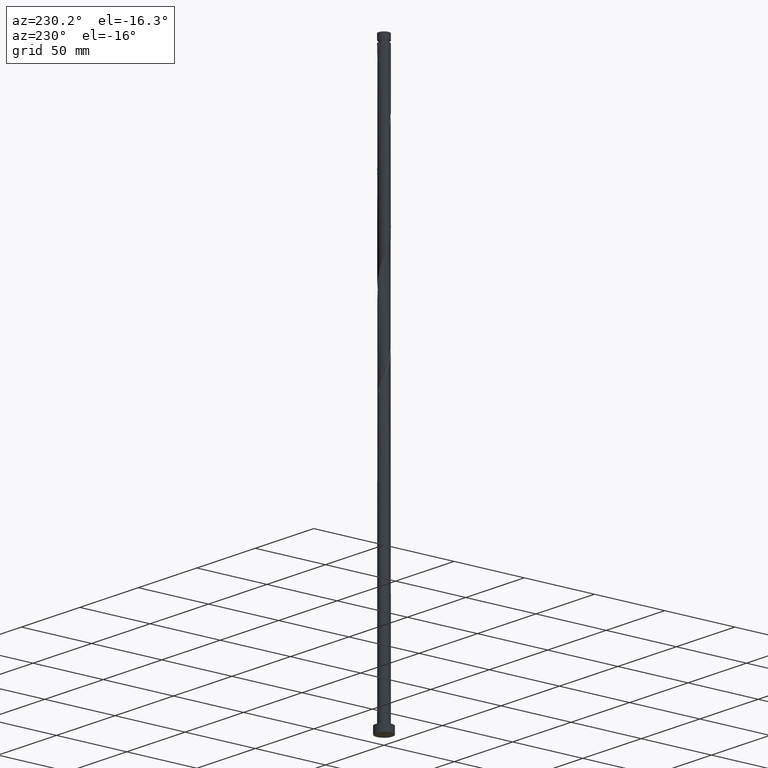
[diagram: clean part render]
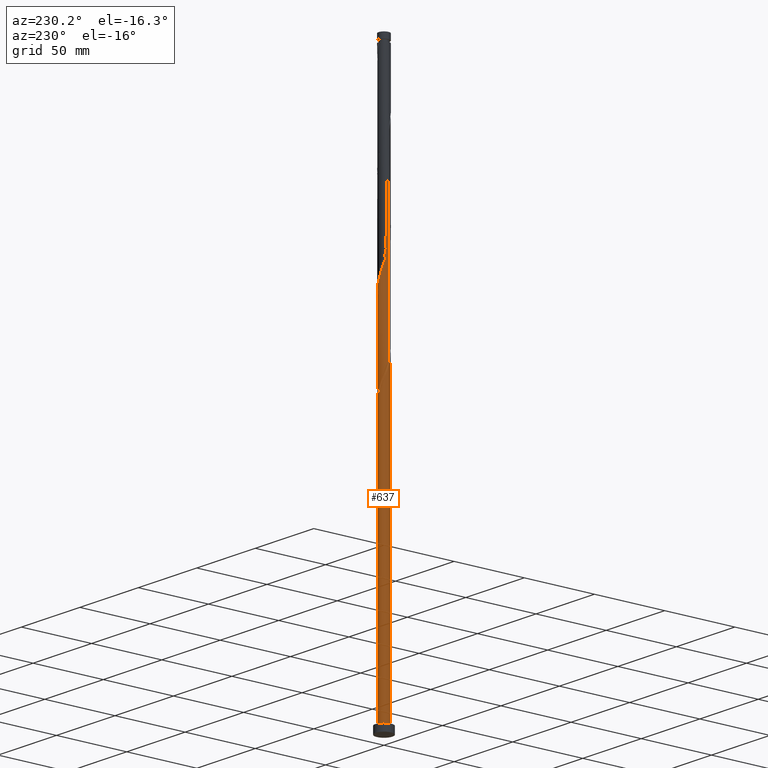
[diagram: same view with one face highlighted and labeled with its STEP entity id]
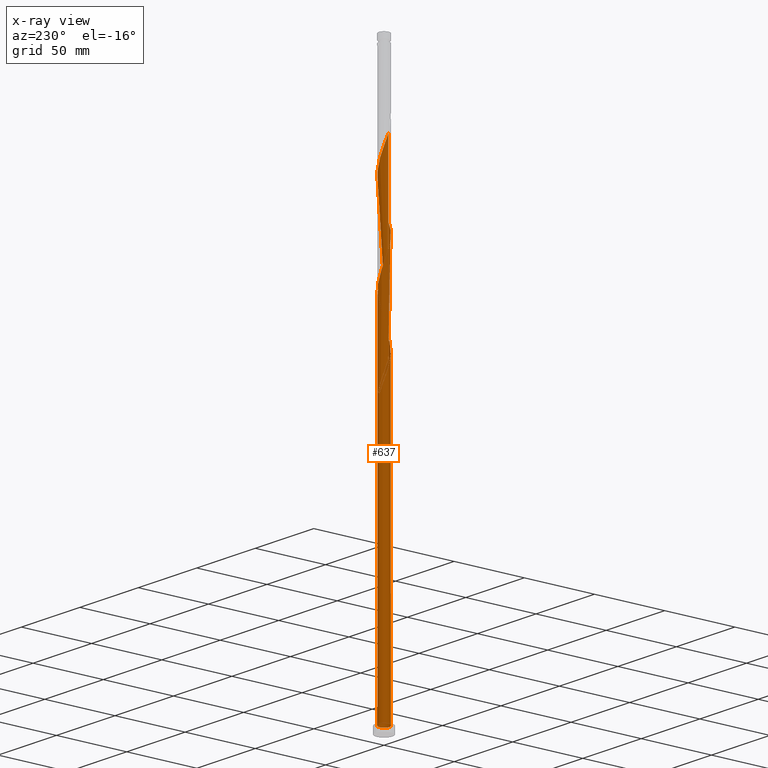
[diagram: x-ray of the same camera — body ghosted, the highlighted face saturated]
A machine part, auxiliary view. The second image highlights one B-rep face of the part: STEP entity #637.
The next image is the same camera in x-ray: the body ghosted, the highlighted face saturated — about 0% of this face is hidden behind the body in this view.
In plain terms, the highlighted cylindrical surface (bore or boss wall) has radius 3.75 mm, axis along (-0, -0, -1).
Its self-contained STEP definition (entity closure, byte-faithful):
#17 = CARTESIAN_POINT ( 'NONE',  ( -3.750000000000000888, 0.1794149973253045538, 212.5831069436316341 ) ) ;
#22 = CARTESIAN_POINT ( 'NONE',  ( -3.750000000000000000, -4.349988887413529122E-15, 213.0916554691957003 ) ) ;
#24 = ORIENTED_EDGE ( 'NONE', *, *, #1068, .F. ) ;
#26 = CARTESIAN_POINT ( 'NONE',  ( -3.695242927395921750, 0.7503510795542961409, 210.9662122256741270 ) ) ;
#34 = CARTESIAN_POINT ( 'NONE',  ( -1.914980618589563921, 3.248183533220407870, 202.0773233367853265 ) ) ;
#45 = CARTESIAN_POINT ( 'NONE',  ( -1.556389492818216480, -3.411766660638603899, 287.6328788923406705 ) ) ;
#51 = CARTESIAN_POINT ( 'NONE',  ( 0.3599825132286074147, 3.753433045257034362, 195.4106566701185841 ) ) ;
#64 = DIRECTION ( 'NONE',  ( -0.000000000000000000, -0.000000000000000000, -1.000000000000000000 ) ) ;
#74 = CARTESIAN_POINT ( 'NONE',  ( 0.8130324731184126463, 3.660802944390068259, 323.1884344478963271 ) ) ;
#79 = CARTESIAN_POINT ( 'NONE',  ( -2.497444560349062037, 2.824998708502501010, 266.5217677812296415 ) ) ;
#85 =( BOUNDED_CURVE ( )  B_SPLINE_CURVE ( 2, ( #422, #1012, #101, #681, #1021, #1608, #600, #887, #1182, #1221, #477, #1063, #1501, #775, #358 ),
 .UNSPECIFIED., .F., .T. ) 
 B_SPLINE_CURVE_WITH_KNOTS ( ( 3, 2, 2, 2, 2, 2, 2, 3 ),
 ( 0.000000000000000000, 0.008333333333333303727, 0.01666666666666671848, 0.02500000000000002220, 0.03333333333333332593, 0.04166666666666662966, 0.05000000000000004441, 0.05452860127731123940 ),
 .UNSPECIFIED. ) 
 CURVE ( )  GEOMETRIC_REPRESENTATION_ITEM ( )  RATIONAL_B_SPLINE_CURVE ( ( 0.9090909090909544688, 0.9041108139712027425, 0.9090909090909544688, 0.9041108139712027425, 0.9090909090909544688, 0.9041108139712027425, 0.9090909090909544688, 0.9041108139712027425, 0.9090909090909544688, 0.9041108139712027425, 0.9090909090909544688, 0.9041108139712027425, 0.9090909090909544688, 0.9063845652765017968, 0.9066196499552428012 ) ) 
 REPRESENTATION_ITEM ( '' )  );
#88 = CARTESIAN_POINT ( 'NONE',  ( 3.030219662713869777, -2.244017787532032404, 235.4106566701185557 ) ) ;
#99 = CARTESIAN_POINT ( 'NONE',  ( -3.750000000000000000, 0.000000000000000000, 400.0000000000000000 ) ) ;
#101 = CARTESIAN_POINT ( 'NONE',  ( -1.494008894529859743, 3.439540292403290067, 196.5217677812296984 ) ) ;
#114 = CARTESIAN_POINT ( 'NONE',  ( -2.809523069992831967, -2.483763297735532394, 216.5217677812296699 ) ) ;
#126 = CARTESIAN_POINT ( 'NONE',  ( -3.695242927395926191, -0.7503510795542960299, 277.6328788923407274 ) ) ;
#164 = CARTESIAN_POINT ( 'NONE',  ( -3.070577111982274676, 2.188470524002659623, 206.5217677812297268 ) ) ;
#191 = EDGE_LOOP ( 'NONE', ( #1455, #24, #1234, #1474, #1331, #329, #898, #750, #1315 ) ) ;
#202 = CARTESIAN_POINT ( 'NONE',  ( 3.576864584649876999, 1.126294696372800663, 312.0773233367851276 ) ) ;
#224 = CARTESIAN_POINT ( 'NONE',  ( -1.494008894529859743, 3.439540292403290067, 263.1884344478963271 ) ) ;
#229 = CARTESIAN_POINT ( 'NONE',  ( -0.7462405778299678882, 3.675000000000004263, 327.6328788923407842 ) ) ;
#233 = CARTESIAN_POINT ( 'NONE',  ( 3.770499765217955268, -0.03433009684319965338, 242.0773233367851844 ) ) ;
#238 = CARTESIAN_POINT ( 'NONE',  ( -3.230389643962377821, 1.904490154393204904, 336.5217677812297552 ) ) ;
#241 = CIRCLE ( 'NONE', #1308, 3.750000000000000000 ) ;
#242 = CARTESIAN_POINT ( 'NONE',  ( 0.7462405778299683323, -3.675000000000004263, 227.6328788923408410 ) ) ;
#250 = CARTESIAN_POINT ( 'NONE',  ( 3.695242927395926191, 0.7503510795542954748, 244.2995455590074130 ) ) ;
#254 = EDGE_CURVE ( 'NONE', #582, #459, #998, .T. ) ;
#261 = CARTESIAN_POINT ( 'NONE',  ( -0.3599825132286042506, 3.753433045257040135, 259.8551011145629559 ) ) ;
#291 = CARTESIAN_POINT ( 'NONE',  ( -0.7462405778299678882, 3.675000000000004263, 194.2995455590074698 ) ) ;
#303 = CARTESIAN_POINT ( 'NONE',  ( -3.576864584649870338, 1.126294696372802662, 209.8551011145630127 ) ) ;
#318 = CIRCLE ( 'NONE', #1384, 3.750000000000000000 ) ;
#323 = CARTESIAN_POINT ( 'NONE',  ( -0.4282665791899551988, -3.746256100723340587, 290.9662122256741554 ) ) ;
#329 = ORIENTED_EDGE ( 'NONE', *, *, #1688, .F. ) ;
#332 = CARTESIAN_POINT ( 'NONE',  ( 3.430559625210885866, -1.564962521254378958, 304.2995455590074698 ) ) ;
#337 = CARTESIAN_POINT ( 'NONE',  ( -0.03414203298067297609, 3.749844572990185476, 196.5217677812296131 ) ) ;
#342 = CARTESIAN_POINT ( 'NONE',  ( 3.770499765217955268, -0.03433009684319965338, 308.7439900034519269 ) ) ;
#351 = CARTESIAN_POINT ( 'NONE',  ( -2.548469028003383485, -2.779056071468405165, 284.2995455590074130 ) ) ;
#358 = CARTESIAN_POINT ( 'NONE',  ( -3.750000000000004441, -4.394834133675493575E-15, 208.8407689821526390 ) ) ;
#369 = CARTESIAN_POINT ( 'NONE',  ( 0.03414203298067567532, 3.749844572990191249, 325.4106566701185557 ) ) ;
#372 = CARTESIAN_POINT ( 'NONE',  ( 1.855519146628387794, -3.282513630063609078, 230.9662122256740986 ) ) ;
#377 = CARTESIAN_POINT ( 'NONE',  ( -3.555763647822798745, 1.191236702264471203, 338.7439900034519269 ) ) ;
#380 = CARTESIAN_POINT ( 'NONE',  ( 3.430559625210885866, -1.564962521254378958, 237.6328788923407558 ) ) ;
#382 = CARTESIAN_POINT ( 'NONE',  ( 0.000000000000000000, 0.000000000000000000, 5.000000000000000000 ) ) ;
#389 = EDGE_CURVE ( 'NONE', #601, #741, #318, .T. ) ;
#391 = CARTESIAN_POINT ( 'NONE',  ( -1.197798367046865708, -3.575349788056795486, 222.0773233367852413 ) ) ;
#395 = VECTOR ( 'NONE', #64, 1000.000000000000000 ) ;
#400 = CARTESIAN_POINT ( 'NONE',  ( 0.8130324731184126463, 3.660802944390068259, 256.5217677812296984 ) ) ;
#420 = DIRECTION ( 'NONE',  ( 0.000000000000000000, 0.000000000000000000, 1.000000000000000000 ) ) ;
#422 = CARTESIAN_POINT ( 'NONE',  ( -0.7462405778299678882, 3.675000000000004263, 194.2995455590074698 ) ) ;
#434 = CARTESIAN_POINT ( 'NONE',  ( -3.750000000000004441, -4.394834133675493575E-15, 208.8407689821526390 ) ) ;
#445 = CARTESIAN_POINT ( 'NONE',  ( -3.680967670434714289, 0.8175108832745635601, 273.1884344478963271 ) ) ;
#459 = VERTEX_POINT ( 'NONE', #22 ) ;
#473 = CARTESIAN_POINT ( 'NONE',  ( 2.763832111531465685, -2.534508248017266485, 300.9662122256740986 ) ) ;
#477 = CARTESIAN_POINT ( 'NONE',  ( -3.555763647822798745, 1.191236702264471203, 205.4106566701186125 ) ) ;
#481 = AXIS2_PLACEMENT_3D ( 'NONE', #1452, #420, #1321 ) ;
#483 = CARTESIAN_POINT ( 'NONE',  ( -2.231724823296476146, -3.013619802344408072, 285.4106566701185557 ) ) ;
#494 = CARTESIAN_POINT ( 'NONE',  ( 3.070577111982280893, 2.188470524002659623, 315.4106566701185557 ) ) ;
#511 = VERTEX_POINT ( 'NONE', #1152 ) ;
#516 = CARTESIAN_POINT ( 'NONE',  ( 2.763832111531465685, -2.534508248017266485, 234.2995455590074130 ) ) ;
#518 = CARTESIAN_POINT ( 'NONE',  ( -3.750000000000003997, 0.2136515154241252490, 341.5685110061013461 ) ) ;
#526 = CARTESIAN_POINT ( 'NONE',  ( 1.494008894529858189, -3.439540292403290511, 229.8551011145629843 ) ) ;
#533 = CARTESIAN_POINT ( 'NONE',  ( -3.680967670434714289, 0.8175108832745635601, 339.8551011145629559 ) ) ;
#538 = CARTESIAN_POINT ( 'NONE',  ( 2.231724823296477034, 3.013619802344407628, 252.0773233367852413 ) ) ;
#540 = LINE ( 'NONE', #978, #395 ) ;
#546 = CARTESIAN_POINT ( 'NONE',  ( 3.458486241903827363, 1.502238313191306629, 246.5217677812296415 ) ) ;
#555 = CARTESIAN_POINT ( 'NONE',  ( -3.264531676943051686, -1.845354418596985679, 214.2995455590074982 ) ) ;
#576 = CARTESIAN_POINT ( 'NONE',  ( -3.576864584649876555, -1.126294696372802218, 278.7439900034519269 ) ) ;
#582 = VERTEX_POINT ( 'NONE', #1433 ) ;
#584 = DIRECTION ( 'NONE',  ( 1.000000000000000000, 0.000000000000000000, 0.000000000000000000 ) ) ;
#590 = CYLINDRICAL_SURFACE ( 'NONE', #874, 3.750000000000000000 ) ;
#600 = CARTESIAN_POINT ( 'NONE',  ( -2.763832111531466573, 2.534508248017266041, 200.9662122256741554 ) ) ;
#601 = VERTEX_POINT ( 'NONE', #291 ) ;
#603 = CARTESIAN_POINT ( 'NONE',  ( -2.809523069992826638, 2.483763297735531062, 205.4106566701185841 ) ) ;
#613 = EDGE_CURVE ( 'NONE', #996, #511, #634, .T. ) ;
#617 = CARTESIAN_POINT ( 'NONE',  ( -0.8130324731184077613, 3.660802944390063818, 198.7439900034518985 ) ) ;
#634 = CIRCLE ( 'NONE', #481, 3.750000000000000000 ) ;
#637 = ADVANCED_FACE ( 'NONE', ( #1312 ), #590, .T. ) ;
#653 = CARTESIAN_POINT ( 'NONE',  ( -3.750000000000004441, -1.569583619169819247E-15, 342.1741023154859249 ) ) ;
#660 = CARTESIAN_POINT ( 'NONE',  ( -2.763832111531466573, 2.534508248017266041, 267.6328788923407842 ) ) ;
#666 = CARTESIAN_POINT ( 'NONE',  ( -2.176481853488724472, 3.053756169283055488, 332.0773233367850708 ) ) ;
#669 = CARTESIAN_POINT ( 'NONE',  ( 3.732871346306941618, 0.3580104913555462454, 243.1884344478963840 ) ) ;
#678 = CARTESIAN_POINT ( 'NONE',  ( 3.264531676943052574, 1.845354418596985235, 247.6328788923407842 ) ) ;
#681 = CARTESIAN_POINT ( 'NONE',  ( -1.855519146628388238, 3.282513630063609078, 197.6328788923408126 ) ) ;
#683 = CARTESIAN_POINT ( 'NONE',  ( -1.855519146628388238, 3.282513630063609078, 330.9662122256740417 ) ) ;
#694 = CARTESIAN_POINT ( 'NONE',  ( 3.555763647822799634, -1.191236702264472314, 238.7439900034519553 ) ) ;
#697 = DIRECTION ( 'NONE',  ( -1.000000000000000000, 0.000000000000000000, 0.000000000000000000 ) ) ;
#741 = VERTEX_POINT ( 'NONE', #1033 ) ;
#750 = ORIENTED_EDGE ( 'NONE', *, *, #389, .T. ) ;
#761 = CARTESIAN_POINT ( 'NONE',  ( -3.732871346306935845, 0.3580104913555497426, 212.0773233367852413 ) ) ;
#770 = CARTESIAN_POINT ( 'NONE',  ( 3.680967670434712957, -0.8175108832745658916, 306.5217677812297552 ) ) ;
#775 = CARTESIAN_POINT ( 'NONE',  ( -3.750000000000003553, 0.2136515154241331038, 208.2351776727680601 ) ) ;
#779 = CARTESIAN_POINT ( 'NONE',  ( 2.497444560349061149, -2.824998708502501454, 299.8551011145630696 ) ) ;
#787 = CARTESIAN_POINT ( 'NONE',  ( 2.231724823296477034, 3.013619802344407628, 318.7439900034519837 ) ) ;
#792 = CARTESIAN_POINT ( 'NONE',  ( 0.7462405778299694425, 3.674999999999999378, 194.2995455590074698 ) ) ;
#799 = CARTESIAN_POINT ( 'NONE',  ( -1.855519146628388238, 3.282513630063609078, 264.2995455590074698 ) ) ;
#806 = CARTESIAN_POINT ( 'NONE',  ( -1.132498642431329694, 3.596566954742967948, 328.7439900034517564 ) ) ;
#809 = CARTESIAN_POINT ( 'NONE',  ( -0.03414203298067514797, -3.749844572990191249, 225.4106566701185272 ) ) ;
#814 = CARTESIAN_POINT ( 'NONE',  ( -3.430559625210886310, 1.564962521254378514, 337.6328788923407274 ) ) ;
#817 = CARTESIAN_POINT ( 'NONE',  ( 3.680967670434712957, -0.8175108832745658916, 239.8551011145629559 ) ) ;
#827 = CARTESIAN_POINT ( 'NONE',  ( 1.914980618589569250, 3.248183533220410091, 253.1884344478963556 ) ) ;
#835 = CARTESIAN_POINT ( 'NONE',  ( -0.7462405778299678882, 3.675000000000004263, 260.9662122256740986 ) ) ;
#849 =( BOUNDED_CURVE ( )  B_SPLINE_CURVE ( 2, ( #1270, #1682, #1115, #1701, #1829, #1393, #555, #1842, #114, #964, #1107, #956, #1538, #391, #944, #1859, #809, #1548, #242, #1280, #526, #372, #975, #1557, #516, #88, #1675, #380, #694, #817, #1401, #233, #669, #250, #1527, #546, #678, #1258, #1850, #1870, #538, #827, #1122, #1711, #400, #986, #1564, #261, #835, #1420, #224, #799, #1385, #79, #660, #1239, #1097, #1753, #1299, #445, #995, #1461, #1574, #126, #576, #1140, #1584, #1150, #1743, #351, #483, #1631, #45, #1067, #1226, #323, #922, #901, #1485, #1077, #1194, #1654, #1789, #779, #473, #1816, #1644, #332, #1496, #770, #1351, #342, #1360, #1506, #202, #1215, #1805, #494, #1663, #1515, #787, #1371, #982, #1267, #74, #1825, #369, #1533, #229, #806, #1409, #683, #666, #1246, #1839, #1689, #238, #814, #377, #533, #1855, #518, #653 ),
 .UNSPECIFIED., .F., .T. ) 
 B_SPLINE_CURVE_WITH_KNOTS ( ( 3, 2, 2, 2, 2, 2, 2, 2, 2, 2, 2, 2, 2, 2, 2, 2, 2, 2, 2, 2, 2, 2, 2, 2, 2, 2, 2, 2, 2, 2, 2, 2, 2, 2, 2, 2, 2, 2, 2, 2, 2, 2, 2, 2, 2, 2, 2, 2, 2, 2, 2, 2, 2, 2, 2, 2, 2, 2, 2, 2, 2, 3 ),
 ( 0.05452860127731123940, 0.05833333333333334814, 0.06666666666666665186, 0.07499999999999995559, 0.08333333333333337034, 0.09166666666666667407, 0.09999999999999997780, 0.1083333333333332815, 0.1166666666666666963, 0.1250000000000000000, 0.1333333333333333037, 0.1416666666666667185, 0.1500000000000000222, 0.1583333333333333259, 0.1666666666666666297, 0.1750000000000000444, 0.1833333333333333481, 0.1916666666666666519, 0.1999999999999999556, 0.2083333333333333703, 0.2166666666666666741, 0.2249999999999999778, 0.2333333333333332815, 0.2416666666666666963, 0.2500000000000000000, 0.2583333333333333037, 0.2666666666666667185, 0.2750000000000000222, 0.2833333333333333259, 0.2916666666666666297, 0.3000000000000000444, 0.3083333333333333481, 0.3166666666666666519, 0.3249999999999999556, 0.3333333333333333703, 0.3416666666666666741, 0.3499999999999999778, 0.3583333333333332815, 0.3666666666666666963, 0.3750000000000000000, 0.3833333333333333037, 0.3916666666666667185, 0.4000000000000000222, 0.4083333333333333259, 0.4166666666666666297, 0.4250000000000000444, 0.4333333333333333481, 0.4416666666666666519, 0.4499999999999999556, 0.4583333333333333703, 0.4666666666666666741, 0.4749999999999999778, 0.4833333333333332815, 0.4916666666666666963, 0.5000000000000000000, 0.5083333333333333037, 0.5166666666666666075, 0.5250000000000000222, 0.5333333333333333259, 0.5416666666666667407, 0.5500000000000000444, 0.5545286012773114059 ),
 .UNSPECIFIED. ) 
 CURVE ( )  GEOMETRIC_REPRESENTATION_ITEM ( )  RATIONAL_B_SPLINE_CURVE ( ( 0.9066196499552428012, 0.9068171577856554144, 0.9090909090909544688, 0.9041108139712027425, 0.9090909090909544688, 0.9041108139712027425, 0.9090909090909544688, 0.9041108139712027425, 0.9090909090909544688, 0.9041108139712027425, 0.9090909090909544688, 0.9041108139712027425, 0.9090909090909544688, 0.9041108139712027425, 0.9090909090909544688, 0.9041108139712027425, 0.9090909090909544688, 0.9041108139712027425, 0.9090909090909544688, 0.9041108139712027425, 0.9090909090909544688, 0.9041108139712027425, 0.9090909090909544688, 0.9041108139712027425, 0.9090909090909544688, 0.9041108139712027425, 0.9090909090909544688, 0.9041108139712027425, 0.9090909090909544688, 0.9041108139712027425, 0.9090909090909544688, 0.9041108139712027425, 0.9090909090909544688, 0.9041108139712027425, 0.9090909090909544688, 0.9041108139712027425, 0.9090909090909544688, 0.9041108139712027425, 0.9090909090909544688, 0.9041108139712027425, 0.9090909090909544688, 0.9041108139712027425, 0.9090909090909544688, 0.9041108139712027425, 0.9090909090909544688, 0.9041108139712027425, 0.9090909090909544688, 0.9041108139712027425, 0.9090909090909544688, 0.9041108139712027425, 0.9090909090909544688, 0.9041108139712027425, 0.9090909090909544688, 0.9041108139712027425, 0.9090909090909544688, 0.9041108139712027425, 0.9090909090909544688, 0.9041108139712027425, 0.9090909090909544688, 0.9041108139712027425, 0.9090909090909544688, 0.9041108139712027425, 0.9090909090909544688, 0.9041108139712027425, 0.9090909090909544688, 0.9041108139712027425, 0.9090909090909544688, 0.9041108139712027425, 0.9090909090909544688, 0.9041108139712027425, 0.9090909090909544688, 0.9041108139712027425, 0.9090909090909544688, 0.9041108139712027425, 0.9090909090909544688, 0.9041108139712027425, 0.9090909090909544688, 0.9041108139712027425, 0.9090909090909544688, 0.9041108139712027425, 0.9090909090909544688, 0.9041108139712027425, 0.9090909090909544688, 0.9041108139712027425, 0.9090909090909544688, 0.9041108139712027425, 0.9090909090909544688, 0.9041108139712027425, 0.9090909090909544688, 0.9041108139712027425, 0.9090909090909544688, 0.9041108139712027425, 0.9090909090909544688, 0.9041108139712027425, 0.9090909090909544688, 0.9041108139712027425, 0.9090909090909544688, 0.9041108139712027425, 0.9090909090909544688, 0.9041108139712027425, 0.9090909090909544688, 0.9041108139712027425, 0.9090909090909544688, 0.9041108139712027425, 0.9090909090909544688, 0.9041108139712027425, 0.9090909090909544688, 0.9041108139712027425, 0.9090909090909544688, 0.9041108139712027425, 0.9090909090909544688, 0.9041108139712027425, 0.9090909090909544688, 0.9041108139712027425, 0.9090909090909544688, 0.9041108139712027425, 0.9090909090909544688, 0.9041108139712027425, 0.9090909090909544688, 0.9041108139712027425, 0.9090909090909544688, 0.9063845652765016858, 0.9066196499552428012 ) ) 
 REPRESENTATION_ITEM ( '' )  );
#874 = AXIS2_PLACEMENT_3D ( 'NONE', #1162, #1882, #1755 ) ;
#879 = CARTESIAN_POINT ( 'NONE',  ( -3.458486241903820702, 1.502238313191308405, 208.7439900034519269 ) ) ;
#887 = CARTESIAN_POINT ( 'NONE',  ( -3.030219662713870221, 2.244017787532031960, 202.0773233367852981 ) ) ;
#895 = CARTESIAN_POINT ( 'NONE',  ( -3.750000000000000000, 0.000000000000000000, 5.000000000000000000 ) ) ;
#898 = ORIENTED_EDGE ( 'NONE', *, *, #1775, .F. ) ;
#901 = CARTESIAN_POINT ( 'NONE',  ( 0.3599825132286062490, -3.753433045257039247, 293.1884344478963840 ) ) ;
#922 = CARTESIAN_POINT ( 'NONE',  ( -0.03414203298067514797, -3.749844572990191249, 292.0773233367852981 ) ) ;
#944 = CARTESIAN_POINT ( 'NONE',  ( -0.8130324731184105369, -3.660802944390068703, 223.1884344478963556 ) ) ;
#956 = CARTESIAN_POINT ( 'NONE',  ( -1.914980618589567030, -3.248183533220410979, 219.8551011145628991 ) ) ;
#964 = CARTESIAN_POINT ( 'NONE',  ( -2.548469028003383485, -2.779056071468405165, 217.6328788923407274 ) ) ;
#975 = CARTESIAN_POINT ( 'NONE',  ( 2.176481853488723583, -3.053756169283056376, 232.0773233367852129 ) ) ;
#978 = CARTESIAN_POINT ( 'NONE',  ( -3.750000000000000000, 0.000000000000000000, 400.0000000000000000 ) ) ;
#982 = CARTESIAN_POINT ( 'NONE',  ( 1.556389492818216702, 3.411766660638603899, 320.9662122256741554 ) ) ;
#986 = CARTESIAN_POINT ( 'NONE',  ( 0.4282665791899555874, 3.746256100723341032, 257.6328788923408410 ) ) ;
#995 = CARTESIAN_POINT ( 'NONE',  ( -3.725733717826334335, 0.4259204900588807186, 274.2995455590073561 ) ) ;
#996 = VERTEX_POINT ( 'NONE', #895 ) ;
#998 = LINE ( 'NONE', #99, #1080 ) ;
#1012 = CARTESIAN_POINT ( 'NONE',  ( -1.132498642431329694, 3.596566954742967948, 195.4106566701185272 ) ) ;
#1021 = CARTESIAN_POINT ( 'NONE',  ( -2.176481853488724472, 3.053756169283055488, 198.7439900034518985 ) ) ;
#1033 = CARTESIAN_POINT ( 'NONE',  ( 0.7462405778299694425, 3.674999999999999378, 194.2995455590074698 ) ) ;
#1055 = CARTESIAN_POINT ( 'NONE',  ( -2.231724823296470817, 3.013619802344404075, 203.1884344478963556 ) ) ;
#1063 = CARTESIAN_POINT ( 'NONE',  ( -3.680967670434714289, 0.8175108832745635601, 206.5217677812296699 ) ) ;
#1067 = CARTESIAN_POINT ( 'NONE',  ( -1.197798367046865708, -3.575349788056795486, 288.7439900034518132 ) ) ;
#1068 = EDGE_CURVE ( 'NONE', #1164, #582, #849, .T. ) ;
#1077 = CARTESIAN_POINT ( 'NONE',  ( 1.132498642431328584, -3.596566954742969280, 295.4106566701184420 ) ) ;
#1080 = VECTOR ( 'NONE', #1551, 1000.000000000000000 ) ;
#1091 = EDGE_CURVE ( 'NONE', #511, #996, #241, .T. ) ;
#1097 = CARTESIAN_POINT ( 'NONE',  ( -3.230389643962377821, 1.904490154393204904, 269.8551011145629559 ) ) ;
#1107 = CARTESIAN_POINT ( 'NONE',  ( -2.231724823296476146, -3.013619802344408072, 218.7439900034519269 ) ) ;
#1115 = CARTESIAN_POINT ( 'NONE',  ( -3.732871346306940730, -0.3580104913555483548, 209.8551011145630696 ) ) ;
#1122 = CARTESIAN_POINT ( 'NONE',  ( 1.556389492818216702, 3.411766660638603899, 254.2995455590073846 ) ) ;
#1140 = CARTESIAN_POINT ( 'NONE',  ( -3.458486241903826031, -1.502238313191309516, 279.8551011145629559 ) ) ;
#1150 = CARTESIAN_POINT ( 'NONE',  ( -3.070577111982280005, -2.188470524002660511, 282.0773233367851844 ) ) ;
#1152 = CARTESIAN_POINT ( 'NONE',  ( 3.750000000000000000, 0.000000000000000000, 5.000000000000000000 ) ) ;
#1162 = CARTESIAN_POINT ( 'NONE',  ( 0.000000000000000000, 0.000000000000000000, 400.0000000000000000 ) ) ;
#1164 = VERTEX_POINT ( 'NONE', #434 ) ;
#1174 = CARTESIAN_POINT ( 'NONE',  ( -2.548469028003380377, 2.779056071468402500, 204.2995455590074698 ) ) ;
#1182 = CARTESIAN_POINT ( 'NONE',  ( -3.230389643962377821, 1.904490154393204904, 203.1884344478963271 ) ) ;
#1194 = CARTESIAN_POINT ( 'NONE',  ( 1.494008894529858189, -3.439540292403290511, 296.5217677812296984 ) ) ;
#1215 = CARTESIAN_POINT ( 'NONE',  ( 3.458486241903827363, 1.502238313191306629, 313.1884344478963271 ) ) ;
#1221 = CARTESIAN_POINT ( 'NONE',  ( -3.430559625210886310, 1.564962521254378514, 204.2995455590074698 ) ) ;
#1226 = CARTESIAN_POINT ( 'NONE',  ( -0.8130324731184105369, -3.660802944390068703, 289.8551011145630127 ) ) ;
#1229 = EDGE_CURVE ( 'NONE', #459, #741, #1634, .T. ) ;
#1234 = ORIENTED_EDGE ( 'NONE', *, *, #1688, .T. ) ;
#1239 = CARTESIAN_POINT ( 'NONE',  ( -3.030219662713870221, 2.244017787532031960, 268.7439900034519269 ) ) ;
#1246 = CARTESIAN_POINT ( 'NONE',  ( -2.497444560349062037, 2.824998708502501010, 333.1884344478963271 ) ) ;
#1258 = CARTESIAN_POINT ( 'NONE',  ( 3.070577111982280893, 2.188470524002659623, 248.7439900034518985 ) ) ;
#1267 = CARTESIAN_POINT ( 'NONE',  ( 1.197798367046866375, 3.575349788056795486, 322.0773233367852413 ) ) ;
#1270 = CARTESIAN_POINT ( 'NONE',  ( -3.750000000000004441, -4.394834133675493575E-15, 208.8407689821526390 ) ) ;
#1280 = CARTESIAN_POINT ( 'NONE',  ( 1.132498642431328584, -3.596566954742969280, 228.7439900034519269 ) ) ;
#1283 = CARTESIAN_POINT ( 'NONE',  ( 0.000000000000000000, 0.000000000000000000, 194.2995455590074982 ) ) ;
#1299 = CARTESIAN_POINT ( 'NONE',  ( -3.555763647822798745, 1.191236702264471203, 272.0773233367852981 ) ) ;
#1308 = AXIS2_PLACEMENT_3D ( 'NONE', #382, #1611, #584 ) ;
#1312 = FACE_OUTER_BOUND ( 'NONE', #191, .T. ) ;
#1315 = ORIENTED_EDGE ( 'NONE', *, *, #1229, .F. ) ;
#1321 = DIRECTION ( 'NONE',  ( 1.000000000000000000, 0.000000000000000000, 0.000000000000000000 ) ) ;
#1331 = ORIENTED_EDGE ( 'NONE', *, *, #1091, .T. ) ;
#1341 = CARTESIAN_POINT ( 'NONE',  ( -3.264531676943047689, 1.845354418596983459, 207.6328788923407558 ) ) ;
#1351 = CARTESIAN_POINT ( 'NONE',  ( 3.725733717826334335, -0.4259204900588811626, 307.6328788923407842 ) ) ;
#1360 = CARTESIAN_POINT ( 'NONE',  ( 3.732871346306941618, 0.3580104913555462454, 309.8551011145630696 ) ) ;
#1371 = CARTESIAN_POINT ( 'NONE',  ( 1.914980618589569250, 3.248183533220410091, 319.8551011145630127 ) ) ;
#1384 = AXIS2_PLACEMENT_3D ( 'NONE', #1283, #1695, #697 ) ;
#1385 = CARTESIAN_POINT ( 'NONE',  ( -2.176481853488724472, 3.053756169283055488, 265.4106566701185557 ) ) ;
#1393 = CARTESIAN_POINT ( 'NONE',  ( -3.458486241903826031, -1.502238313191309516, 213.1884344478963271 ) ) ;
#1401 = CARTESIAN_POINT ( 'NONE',  ( 3.725733717826334335, -0.4259204900588811626, 240.9662122256741270 ) ) ;
#1409 = CARTESIAN_POINT ( 'NONE',  ( -1.494008894529859743, 3.439540292403290067, 329.8551011145630696 ) ) ;
#1420 = CARTESIAN_POINT ( 'NONE',  ( -1.132498642431329694, 3.596566954742967948, 262.0773233367851844 ) ) ;
#1433 = CARTESIAN_POINT ( 'NONE',  ( -3.750000000000004441, -1.569583619169819050E-15, 342.1741023154859249 ) ) ;
#1452 = CARTESIAN_POINT ( 'NONE',  ( 0.000000000000000000, 0.000000000000000000, 5.000000000000000000 ) ) ;
#1455 = ORIENTED_EDGE ( 'NONE', *, *, #254, .F. ) ;
#1461 = CARTESIAN_POINT ( 'NONE',  ( -3.770499765217955268, 0.03433009684319849458, 275.4106566701185557 ) ) ;
#1474 = ORIENTED_EDGE ( 'NONE', *, *, #613, .T. ) ;
#1485 = CARTESIAN_POINT ( 'NONE',  ( 0.7462405778299683323, -3.675000000000004263, 294.2995455590074698 ) ) ;
#1496 = CARTESIAN_POINT ( 'NONE',  ( 3.555763647822799634, -1.191236702264472314, 305.4106566701184988 ) ) ;
#1501 = CARTESIAN_POINT ( 'NONE',  ( -3.725733717826334335, 0.4259204900588807186, 207.6328788923407842 ) ) ;
#1506 = CARTESIAN_POINT ( 'NONE',  ( 3.695242927395926191, 0.7503510795542954748, 310.9662122256740986 ) ) ;
#1515 = CARTESIAN_POINT ( 'NONE',  ( 2.548469028003383485, 2.779056071468404721, 317.6328788923407274 ) ) ;
#1527 = CARTESIAN_POINT ( 'NONE',  ( 3.576864584649876999, 1.126294696372800663, 245.4106566701185841 ) ) ;
#1533 = CARTESIAN_POINT ( 'NONE',  ( -0.3599825132286042506, 3.753433045257040135, 326.5217677812296415 ) ) ;
#1538 = CARTESIAN_POINT ( 'NONE',  ( -1.556389492818216480, -3.411766660638603899, 220.9662122256741270 ) ) ;
#1548 = CARTESIAN_POINT ( 'NONE',  ( 0.3599825132286062490, -3.753433045257039247, 226.5217677812296415 ) ) ;
#1551 = DIRECTION ( 'NONE',  ( -0.000000000000000000, -0.000000000000000000, -1.000000000000000000 ) ) ;
#1557 = CARTESIAN_POINT ( 'NONE',  ( 2.497444560349061149, -2.824998708502501454, 233.1884344478962703 ) ) ;
#1564 = CARTESIAN_POINT ( 'NONE',  ( 0.03414203298067567532, 3.749844572990191249, 258.7439900034518701 ) ) ;
#1574 = CARTESIAN_POINT ( 'NONE',  ( -3.732871346306940730, -0.3580104913555483548, 276.5217677812295847 ) ) ;
#1584 = CARTESIAN_POINT ( 'NONE',  ( -3.264531676943051686, -1.845354418596985679, 280.9662122256741554 ) ) ;
#1608 = CARTESIAN_POINT ( 'NONE',  ( -2.497444560349062037, 2.824998708502501010, 199.8551011145629843 ) ) ;
#1611 = DIRECTION ( 'NONE',  ( 0.000000000000000000, 0.000000000000000000, 1.000000000000000000 ) ) ;
#1620 = CARTESIAN_POINT ( 'NONE',  ( -1.197798367046861934, 3.575349788056791489, 199.8551011145630696 ) ) ;
#1631 = CARTESIAN_POINT ( 'NONE',  ( -1.914980618589567030, -3.248183533220410979, 286.5217677812298120 ) ) ;
#1634 =( BOUNDED_CURVE ( )  B_SPLINE_CURVE ( 2, ( #1760, #17, #761, #26, #303, #879, #1341, #164, #603, #1174, #1055, #34, #1769, #1620, #617, #1642, #337, #51, #792 ),
 .UNSPECIFIED., .F., .T. ) 
 B_SPLINE_CURVE_WITH_KNOTS ( ( 3, 2, 2, 2, 2, 2, 2, 2, 2, 3 ),
 ( 0.9295286012773112949, 0.9333333333333333481, 0.9416666666666666519, 0.9499999999999999556, 0.9583333333333333703, 0.9666666666666666741, 0.9749999999999999778, 0.9833333333333332815, 0.9916666666666666963, 1.000000000000000000 ),
 .UNSPECIFIED. ) 
 CURVE ( )  GEOMETRIC_REPRESENTATION_ITEM ( )  RATIONAL_B_SPLINE_CURVE ( ( 0.9066196499552368060, 0.9068171577856494192, 0.9090909090909484735, 0.9041108139711966363, 0.9090909090909484735, 0.9041108139711966363, 0.9090909090909484735, 0.9041108139711966363, 0.9090909090909484735, 0.9041108139711966363, 0.9090909090909484735, 0.9041108139711966363, 0.9090909090909484735, 0.9041108139711966363, 0.9090909090909484735, 0.9041108139711966363, 0.9090909090909484735, 0.9041108139711966363, 0.9090909090909484735 ) ) 
 REPRESENTATION_ITEM ( '' )  );
#1642 = CARTESIAN_POINT ( 'NONE',  ( -0.4282665791899536445, 3.746256100723336147, 197.6328788923408695 ) ) ;
#1644 = CARTESIAN_POINT ( 'NONE',  ( 3.230389643962377821, -1.904490154393205792, 303.1884344478962134 ) ) ;
#1654 = CARTESIAN_POINT ( 'NONE',  ( 1.855519146628387794, -3.282513630063609078, 297.6328788923407274 ) ) ;
#1663 = CARTESIAN_POINT ( 'NONE',  ( 2.809523069992833300, 2.483763297735531062, 316.5217677812295847 ) ) ;
#1675 = CARTESIAN_POINT ( 'NONE',  ( 3.230389643962377821, -1.904490154393205792, 236.5217677812296984 ) ) ;
#1682 = CARTESIAN_POINT ( 'NONE',  ( -3.750000000000006217, -0.1794149973253002239, 209.3493175077166768 ) ) ;
#1688 = EDGE_CURVE ( 'NONE', #1164, #996, #540, .T. ) ;
#1689 = CARTESIAN_POINT ( 'NONE',  ( -3.030219662713870221, 2.244017787532031960, 335.4106566701185557 ) ) ;
#1695 = DIRECTION ( 'NONE',  ( 0.000000000000000000, -0.000000000000000000, -1.000000000000000000 ) ) ;
#1701 = CARTESIAN_POINT ( 'NONE',  ( -3.695242927395926191, -0.7503510795542960299, 210.9662122256741270 ) ) ;
#1711 = CARTESIAN_POINT ( 'NONE',  ( 1.197798367046866375, 3.575349788056795486, 255.4106566701185272 ) ) ;
#1743 = CARTESIAN_POINT ( 'NONE',  ( -2.809523069992831967, -2.483763297735532394, 283.1884344478964408 ) ) ;
#1753 = CARTESIAN_POINT ( 'NONE',  ( -3.430559625210886310, 1.564962521254378514, 270.9662122256740986 ) ) ;
#1755 = DIRECTION ( 'NONE',  ( -1.000000000000000000, 0.000000000000000000, 0.000000000000000000 ) ) ;
#1760 = CARTESIAN_POINT ( 'NONE',  ( -3.750000000000000000, -4.349988887413529911E-15, 213.0916554691957003 ) ) ;
#1769 = CARTESIAN_POINT ( 'NONE',  ( -1.556389492818213149, 3.411766660638600346, 200.9662122256741554 ) ) ;
#1775 = EDGE_CURVE ( 'NONE', #601, #1164, #85, .T. ) ;
#1789 = CARTESIAN_POINT ( 'NONE',  ( 2.176481853488723583, -3.053756169283056376, 298.7439900034519269 ) ) ;
#1805 = CARTESIAN_POINT ( 'NONE',  ( 3.264531676943052574, 1.845354418596985235, 314.2995455590074698 ) ) ;
#1816 = CARTESIAN_POINT ( 'NONE',  ( 3.030219662713869777, -2.244017787532032404, 302.0773233367852413 ) ) ;
#1825 = CARTESIAN_POINT ( 'NONE',  ( 0.4282665791899555874, 3.746256100723341032, 324.2995455590073561 ) ) ;
#1829 = CARTESIAN_POINT ( 'NONE',  ( -3.576864584649876555, -1.126294696372802218, 212.0773233367852129 ) ) ;
#1839 = CARTESIAN_POINT ( 'NONE',  ( -2.763832111531466573, 2.534508248017266041, 334.2995455590073561 ) ) ;
#1842 = CARTESIAN_POINT ( 'NONE',  ( -3.070577111982280005, -2.188470524002660511, 215.4106566701185841 ) ) ;
#1850 = CARTESIAN_POINT ( 'NONE',  ( 2.809523069992833300, 2.483763297735531062, 249.8551011145630127 ) ) ;
#1855 = CARTESIAN_POINT ( 'NONE',  ( -3.725733717826334335, 0.4259204900588807186, 340.9662122256740986 ) ) ;
#1859 = CARTESIAN_POINT ( 'NONE',  ( -0.4282665791899551988, -3.746256100723340587, 224.2995455590074130 ) ) ;
#1870 = CARTESIAN_POINT ( 'NONE',  ( 2.548469028003383485, 2.779056071468404721, 250.9662122256741554 ) ) ;
#1882 = DIRECTION ( 'NONE',  ( -0.000000000000000000, -0.000000000000000000, -1.000000000000000000 ) ) ;